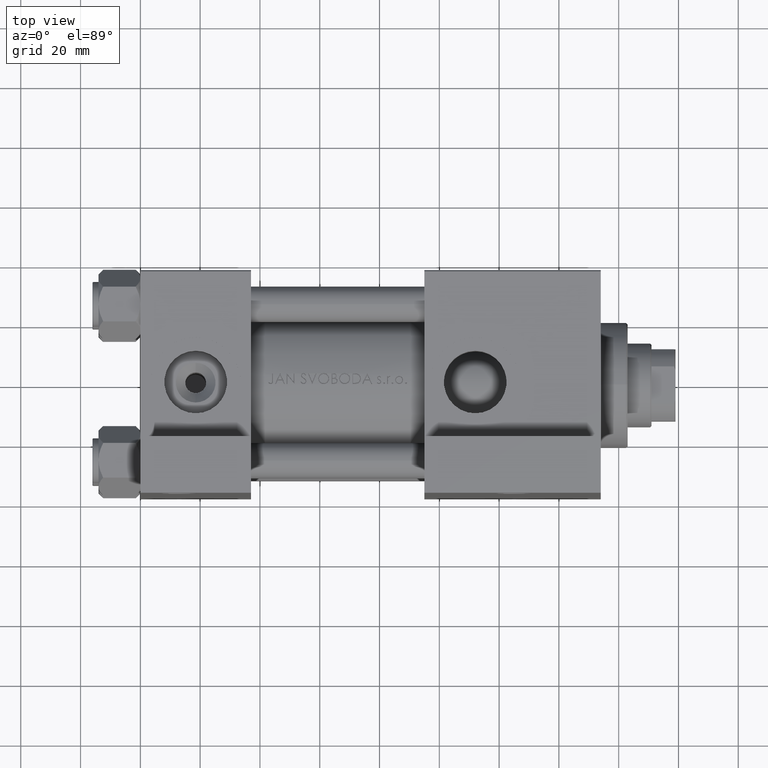
[diagram: clean part render]
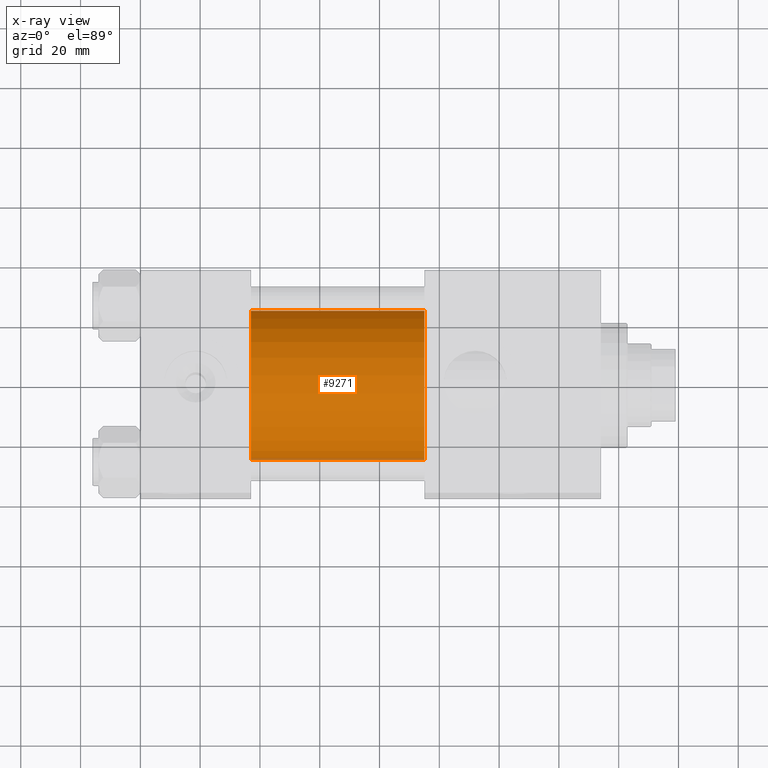
[diagram: x-ray — body ghosted, one internal face saturated and labeled with its STEP entity id]
A machine part, top view, then the same camera in x-ray: the body is ghosted and one INTERNAL B-rep face — a face not visible from any outside direction — is saturated and labeled: STEP entity #9271.
In plain terms, the highlighted cylindrical surface (partial cylindrical patch) has radius 25 mm, axis along (-1, -0, 0).
Its self-contained STEP definition (entity closure, byte-faithful):
#1955 = CIRCLE ( 'NONE', #29951, 25.00000000000000000 ) ;
#2804 = VERTEX_POINT ( 'NONE', #19121 ) ;
#2956 = CARTESIAN_POINT ( 'NONE',  ( 95.00000000000000000, 0.000000000000000000, 24.50000000000000000 ) ) ;
#3015 = VECTOR ( 'NONE', #29714, 1000.000000000000000 ) ;
#4479 = VERTEX_POINT ( 'NONE', #6565 ) ;
#4593 = CARTESIAN_POINT ( 'NONE',  ( 95.00000000000000000, 0.000000000000000000, 24.50000000000000000 ) ) ;
#5982 = DIRECTION ( 'NONE',  ( 1.000000000000000000, 0.000000000000000000, 0.000000000000000000 ) ) ;
#6565 = CARTESIAN_POINT ( 'NONE',  ( 95.00000000000000000, 3.061616997868382254E-15, -25.50000000000000355 ) ) ;
#9271 = ADVANCED_FACE ( 'NONE', ( #28695 ), #21170, .F. ) ;
#9505 = DIRECTION ( 'NONE',  ( 0.000000000000000000, 0.000000000000000000, -1.000000000000000000 ) ) ;
#9743 = CARTESIAN_POINT ( 'NONE',  ( 37.00000000000000000, 0.000000000000000000, -0.5000000000000004441 ) ) ;
#11383 = CARTESIAN_POINT ( 'NONE',  ( 37.00000000000000000, 3.061616997868382254E-15, -25.50000000000000355 ) ) ;
#11957 = VERTEX_POINT ( 'NONE', #11383 ) ;
#12115 = EDGE_CURVE ( 'NONE', #49156, #2804, #39164, .T. ) ;
#12942 = DIRECTION ( 'NONE',  ( 0.000000000000000000, 0.000000000000000000, 1.000000000000000000 ) ) ;
#19121 = CARTESIAN_POINT ( 'NONE',  ( 37.00000000000000000, 0.000000000000000000, 24.50000000000000000 ) ) ;
#20008 = ORIENTED_EDGE ( 'NONE', *, *, #37035, .T. ) ;
#20922 = ORIENTED_EDGE ( 'NONE', *, *, #22269, .T. ) ;
#21170 = CYLINDRICAL_SURFACE ( 'NONE', #45955, 25.00000000000000000 ) ;
#21173 = EDGE_CURVE ( 'NONE', #2804, #11957, #42236, .T. ) ;
#21765 = EDGE_LOOP ( 'NONE', ( #20008, #20922, #45619, #47972 ) ) ;
#22269 = EDGE_CURVE ( 'NONE', #4479, #11957, #33712, .T. ) ;
#25807 = DIRECTION ( 'NONE',  ( 0.000000000000000000, 0.000000000000000000, -1.000000000000000000 ) ) ;
#28695 = FACE_OUTER_BOUND ( 'NONE', #21765, .T. ) ;
#29714 = DIRECTION ( 'NONE',  ( -1.000000000000000000, -0.000000000000000000, -0.000000000000000000 ) ) ;
#29951 = AXIS2_PLACEMENT_3D ( 'NONE', #41348, #30064, #25807 ) ;
#30064 = DIRECTION ( 'NONE',  ( 1.000000000000000000, 0.000000000000000000, 0.000000000000000000 ) ) ;
#32696 = CARTESIAN_POINT ( 'NONE',  ( 95.00000000000000000, 0.000000000000000000, -0.5000000000000004441 ) ) ;
#33712 = LINE ( 'NONE', #40994, #3015 ) ;
#35651 = VECTOR ( 'NONE', #39663, 1000.000000000000000 ) ;
#37035 = EDGE_CURVE ( 'NONE', #49156, #4479, #1955, .T. ) ;
#39164 = LINE ( 'NONE', #4593, #35651 ) ;
#39663 = DIRECTION ( 'NONE',  ( -1.000000000000000000, -0.000000000000000000, -0.000000000000000000 ) ) ;
#39974 = DIRECTION ( 'NONE',  ( -1.000000000000000000, -0.000000000000000000, -0.000000000000000000 ) ) ;
#40994 = CARTESIAN_POINT ( 'NONE',  ( 95.00000000000000000, 3.061616997868382254E-15, -25.50000000000000355 ) ) ;
#41348 = CARTESIAN_POINT ( 'NONE',  ( 95.00000000000000000, 0.000000000000000000, -0.5000000000000004441 ) ) ;
#42236 = CIRCLE ( 'NONE', #48636, 25.00000000000000000 ) ;
#45619 = ORIENTED_EDGE ( 'NONE', *, *, #21173, .F. ) ;
#45955 = AXIS2_PLACEMENT_3D ( 'NONE', #32696, #39974, #12942 ) ;
#47972 = ORIENTED_EDGE ( 'NONE', *, *, #12115, .F. ) ;
#48636 = AXIS2_PLACEMENT_3D ( 'NONE', #9743, #5982, #9505 ) ;
#49156 = VERTEX_POINT ( 'NONE', #2956 ) ;